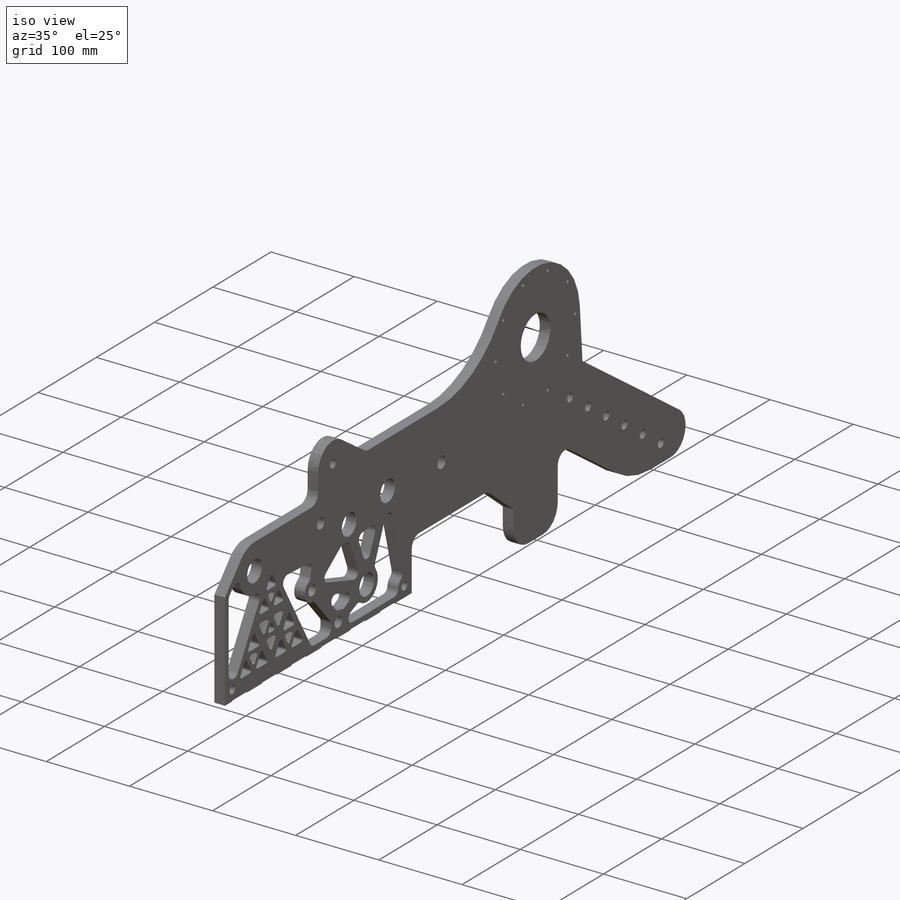
[diagram: iso view]
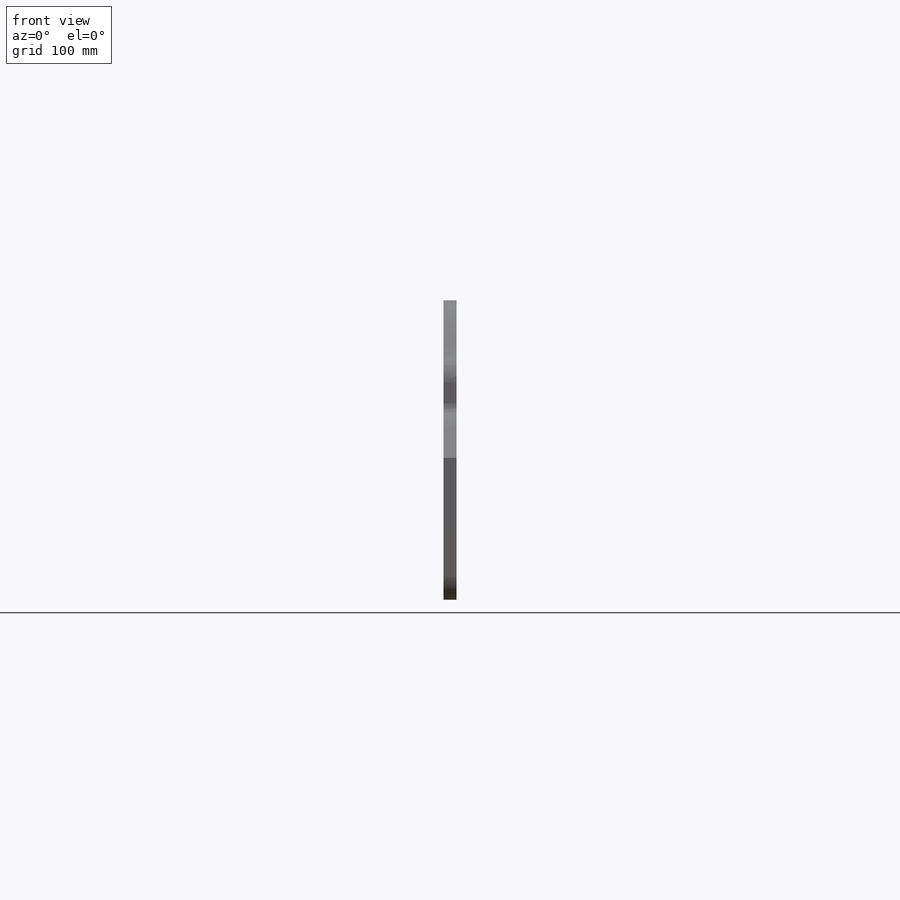
[diagram: front view]
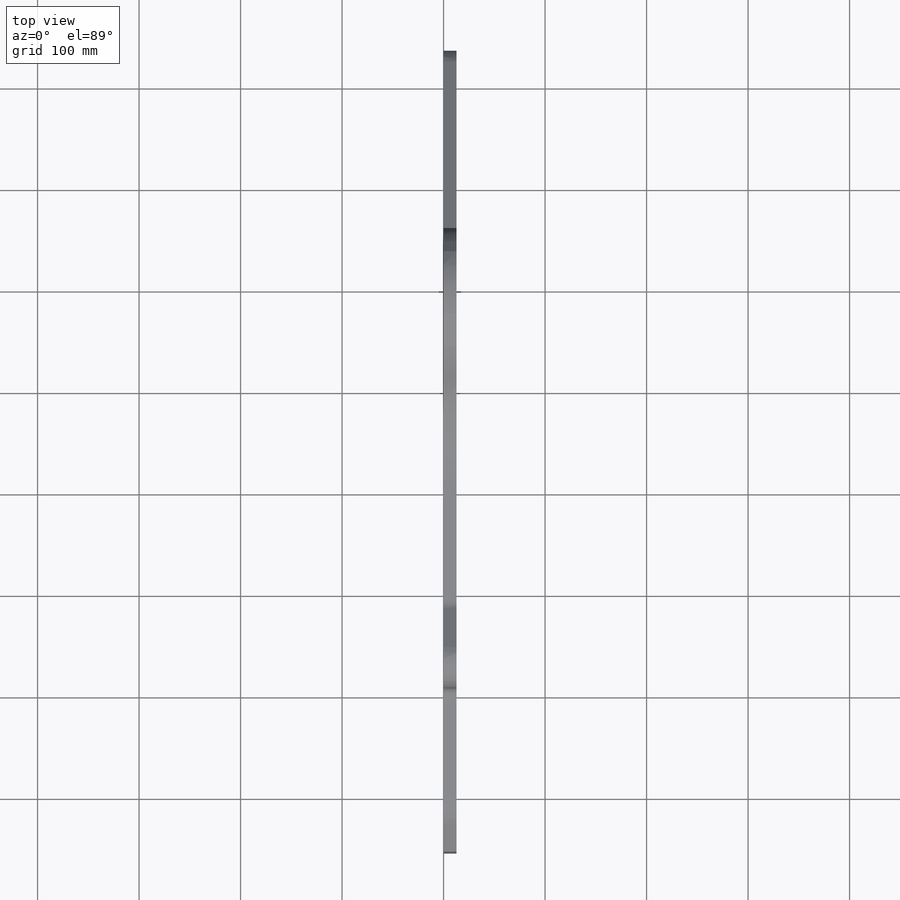
[diagram: top view]
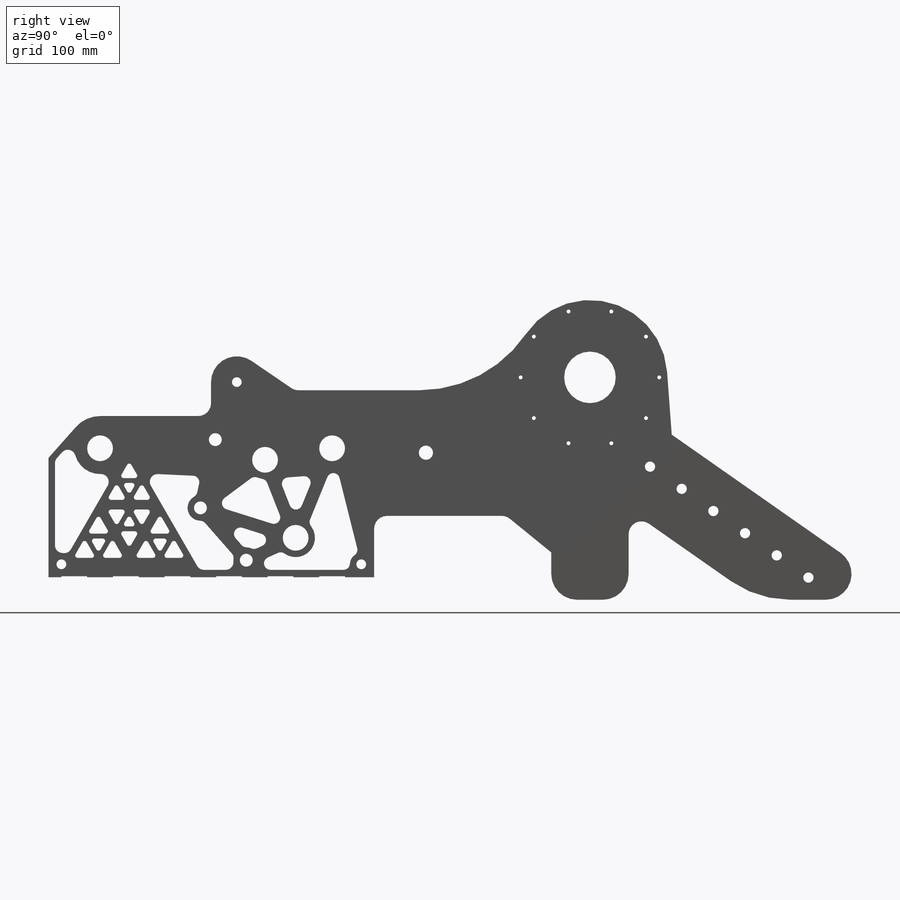
[diagram: right view]
SOLIDWORKS PART (.sldprt)
format: sldprt  version: not decoded by parser v0  size: 1,749,504 bytes
history: native  units: mm
features: sketch x31, cut_extrude x17, extrude x11, fillet x11, material x1, hole x1 (+13 scaffold rows collapsed)
feature tree (85):
  scaffold x13  (default folders/planes/origin — collapsed)
  material  "6061-T6 (SS)"
  sketch  "Sketch1"  dims[c1.D1=~9.285877mm c1.D3=~12.882042mm c1.D4=15.875mm c1.D5=101.6mm c1.D9=50.8mm c1.D10=67.31mm c1.D11=79.502mm c1.D12=46.736mm c2.D1=38.1mm c2.D2=50.8mm c2.D3=71.755mm c2.D6=254.0mm c2.D7=38.1mm c2.D8=38.1mm c3.D1=558.8mm c3.D2=88.9mm]
  extrude  "Boss-Extrude1"  Depth=12.7mm
  sketch  "Sketch2"  dims[c1.D1=25.4mm c1.D2=63.5mm c1.D3=127.0mm c1.D4=127.0mm c1.D5=76.2mm c1.D6=254.0mm c1.D7=196.85mm c2.D5=~79.056862mm c3.D5=45.0deg c4.D5=~58.544107mm c5.D5=45.0deg c6.D5=228.6mm]
  extrude  "Boss-Extrude2"  Depth=12.7mm
  sketch  "Sketch3"  dims[c1.D1=~58.544107mm c2.D1=45.0deg]
  extrude  "Boss-Extrude3"  Depth=12.7mm
  sketch  "Sketch4"
  cut_extrude  "Cut-Extrude1"  [1 undecoded]
  sketch  "Sketch5"  dims[D1=50.8mm D2=~117.554935mm]
  cut_extrude  "Cut-Extrude2"  [1 undecoded]
  sketch  "Sketch6"  dims[c1.D2=406.4mm c1.D3=152.4mm c1.D7=76.2mm c1.D1=15.875mm c1.D4=279.4mm c1.D5=152.4mm c1.D6=~278.395076mm c2.D6=35.0deg c2.D8=330.2mm]
  extrude  "Boss-Extrude4"  Depth=12.7mm
  sketch  "Sketch8"  dims[D1=50.8mm]
  cut_extrude  "Cut-Extrude3"  [1 undecoded]
  fillet  "Fillet1"  Radius=25.4mm
  hole  "3/8 Clearance Hole1"  Diameter=10.0838mm Depth=12.7mm
  sketch  "Sketch10"  dims[D1=38.1mm D2=38.1mm D3=38.1mm D4=38.1mm D5=38.1mm D6=38.1mm D7=38.1mm]
  sketch  "Sketch11"  dims[hole-wizard template sketch: 60 standard entries collapsed; hole parameters kept: c18.Thru Hole Depth=12.7mm]
  sketch  "Sketch13"  dims[c1.D1=25.4mm c1.D2=25.4mm c1.D3=101.6mm c1.D4=~111.034915mm c1.D5=117.475mm c1.D6=~38.80358mm c2.D3=330.2mm c2.D4=330.2mm c2.D5=82.55mm]
  cut_extrude  "Motor locations"  [1 undecoded]
  sketch  "Sketch16"  dims[D1=~17.989741mm]
  extrude  "Boss-Extrude6"  Depth=12.7mm
  sketch  "Sketch17"  dims[D1=26.035mm]
  cut_extrude  "Cut-Extrude6"  [1 undecoded]
  sketch  "Sketch18"  dims[c1.D2=~24.923733mm c1.D1=~31.794063mm c2.D2=25.4mm c2.D1=50.8mm]
  cut_extrude  "Cut-Extrude7"  [1 undecoded]
  fillet  "Fillet2"  Radius=9.525mm
  sketch  "Sketch19"  dims[D1=25.4mm D2=9.652mm D3=25.4mm D4=9.652mm]
  cut_extrude  "Cut-Extrude8"  [1 undecoded]
  sketch  "Sketch20"  dims[D1=57.15mm D2=0.0mm]
  extrude  "Boss-Extrude7"  [1 undecoded]
  fillet  "Fillet3"  Radius=12.7mm
  sketch  "Sketch21"  dims[D2=38.1mm D1=0.0mm]
  extrude  "Boss-Extrude8"  [1 undecoded]
  sketch  "Sketch23"  dims[c1.D2=~1409.912514mm c1.D1=127.0mm c2.D2=~155.109117mm]
  cut_extrude  "Cut-Extrude9"  [1 undecoded]
  fillet  "Fillet4"  Radius=25.4mm
  fillet  "Fillet5"  Radius=25.4mm
  fillet  "Fillet6"  Radius=12.7mm
  fillet  "Fillet7"  Radius=101.6mm
  sketch  "Sketch25"  dims[D1=~69.538911mm]
  cut_extrude  "Cut-Extrude11"  [1 undecoded]
  sketch  "Sketch26"  dims[c1.D1=~101.012911mm c1.D2=~64.690069mm c2.D1=38.1mm c2.D2=0.0mm]
  extrude  "Boss-Extrude9"  [1 undecoded]
  sketch  "Sketch27"  dims[c1.D1=152.4mm c1.D2=~326.943783mm c2.D1=0.0mm]
  cut_extrude  "Cut-Extrude12"  [1 undecoded]
  sketch  "Sketch28"  dims[D1=38.1mm D2=0.0mm]
  extrude  "Boss-Extrude10"  [1 undecoded]
  fillet  "Fillet9"  Radius=12.7mm
  sketch  "Sketch29"  dims[c1.D2=19.05mm c1.D3=19.05mm c1.D4=~320.811447mm c2.D4=60.0deg c2.D5=~140.938067mm c3.D5=60.0deg c3.D6=~123.247556mm c4.D6=60.0deg c4.D7=~192.403789mm c5.D7=60.0deg c5.D8=~57.893629mm c5.D1=19.05mm c6.D8=4.7625mm c6.D9=4.7625mm]
  cut_extrude  "Cut-Extrude13"  [1 undecoded]
  sketch  "Sketch30"  dims[D1=~2.38125mm D2=~2.38125mm D3=~2.38125mm D4=~2.38125mm]
  extrude  "Boss-Extrude11"  [1 undecoded]
  fillet  "Fillet10"  Radius=2.38125mm
  sketch  "Sketch31"  dims[D1=25.4mm D2=0.889mm D3=12.7mm D4=6.0]
  cut_extrude  "Cut-Extrude14"  [1 undecoded]
  sketch  "Sketch33"  dims[c1.D1=~33.106468mm c1.D2=~30.995413mm c1.D3=~31.042437mm c1.D4=~80.679535mm c1.D5=12.7mm c1.D6=12.7mm c1.D7=12.7mm c1.D8=12.7mm c1.D9=12.7mm c2.D1=~16.75638mm c2.D2=68.2879mm c2.D3=~135.53948mm c2.D4=~26.16962mm c2.D8=4.3307mm c2.D9=~40.82034mm]
  cut_extrude  "Cut-Extrude16"  [1 undecoded]
  sketch  "Sketch34"  dims[c1.D11=7.62mm c1.D13=7.62mm c1.D2=7.62mm c1.D6=7.62mm c1.D8=6.35mm c1.D7=6.35mm c1.D15=6.35mm c1.D16=6.35mm c1.D17=6.35mm c1.D1=6.35mm c2.D2=6.35mm c2.D3=6.35mm c2.D4=6.35mm c2.D5=6.35mm c2.D6=6.35mm c2.D7=6.35mm c2.D8=6.35mm c2.D9=6.35mm c2.D10=6.35mm c3.D3=12.7mm c3.D12=12.7mm c3.D9=6.35mm c3.D14=6.35mm c3.D15=6.35mm c4.D14=6.35mm c4.D15=6.35mm]
  cut_extrude  "Cut-Extrude17"  [1 undecoded]
  sketch  "Sketch35"  dims[D2=3.81mm D1=136.525mm D3=10.0]
  cut_extrude  "Cut-Extrude18"  [1 undecoded]
  sketch  "Sketch36"  dims[c1.D1=406.4mm c1.D3=0.508mm c1.D4=50.8mm c2.D3=1.27mm c2.D5=50.8mm c2.D6=19.05mm c2.D7=19.05mm c2.D8=22.225mm c2.D9=22.225mm c2.D10=22.225mm c2.D12=50.8mm c2.D14=19.05mm c2.D15=16.51mm c3.D3=~31.532588mm c3.D9=114.3mm c3.D10=101.6mm c3.D11=101.6mm c3.D2=50.8mm c3.D13=25.4mm]
  sketch  "Sketch37"
  cut_extrude  "Cut-Extrude20"  Depth=12.7mm
  fillet  "Fillet11"  Radius=127mm
  sketch  "Sketch38"  dims[D1=9.525mm]
  extrude  "Boss-Extrude12"  Depth=12.7mm
  fillet  "Fillet12"  Radius=12.7mm
  sketch  "Sketch39"  dims[c1.D1=406.4mm c1.D2=13.97mm c2.D1=177.8mm]
  cut_extrude  "Cut-Extrude21"  Depth=12.7mm
decode coverage: 49 of 71 modeling features carry decoded parameters
note: ~ marks probable driven/reference dimensions
note: 20 parameter values undecoded
summary: no parameter record found for 20 features
note: suppression state not decoded; provenance and decode notes live in map.json
